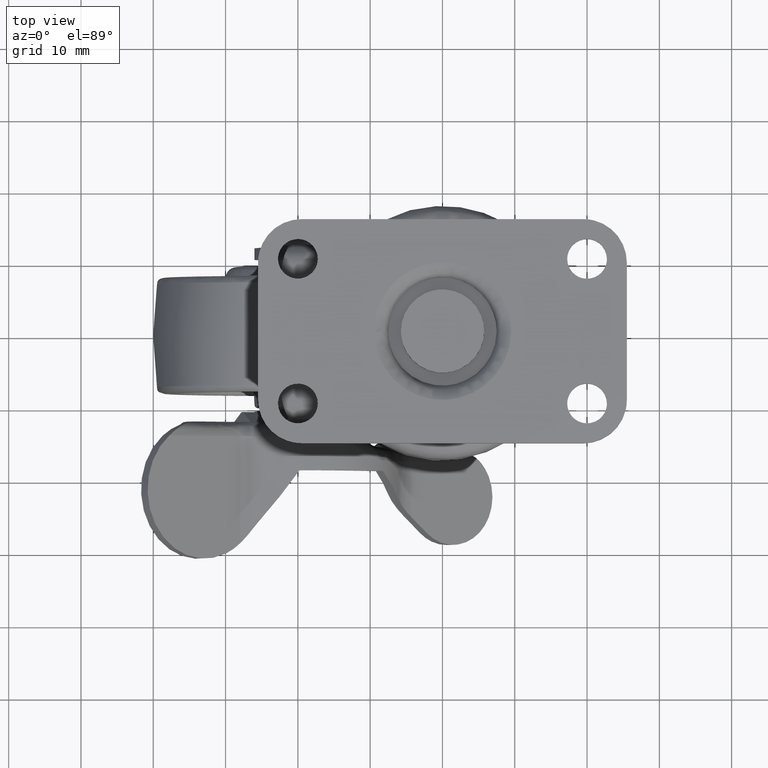
[diagram: clean part render]
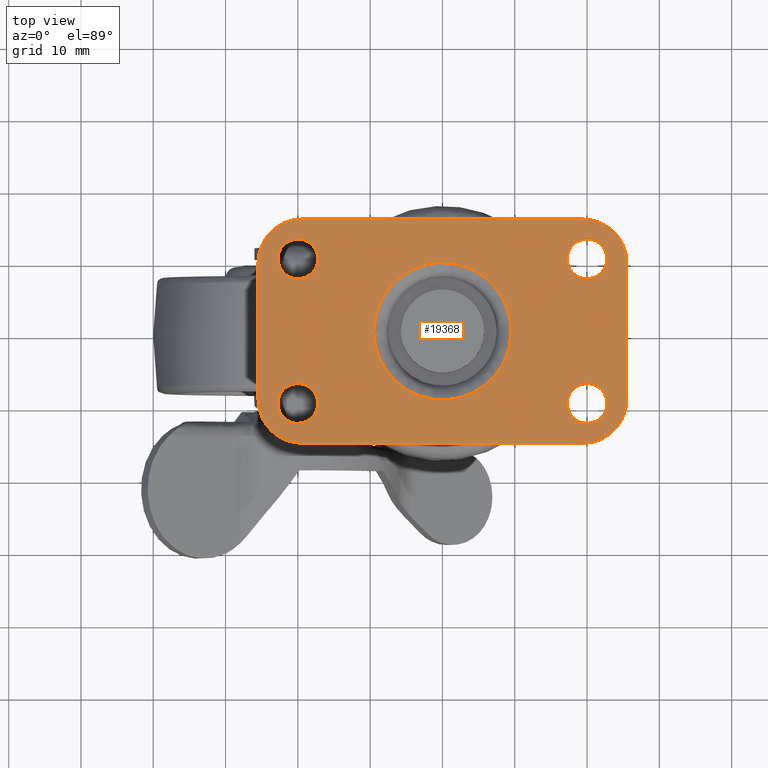
[diagram: same view with one face highlighted and labeled with its STEP entity id]
A machine part, top view. The second image highlights one B-rep face of the part: STEP entity #19368.
In plain terms, the highlighted face is a freeform B-spline surface patch.
Its self-contained STEP definition (entity closure, byte-faithful):
#15477=CARTESIAN_POINT('',(0.215762513266570,12.741522667764810,38.0));
#15478=VERTEX_POINT('',#15477);
#15484=CARTESIAN_POINT('',(-2.750000000000001,9.999999999999890,38.0));
#15485=VERTEX_POINT('',#15484);
#15486=CARTESIAN_POINT('',(0.215762513266569,12.741522667764812,38.0));
#15487=CARTESIAN_POINT('',(0.108047794286156,12.749999999999890,38.000000000000007));
#15488=CARTESIAN_POINT('',(-1.224606E-015,12.749999999999890,38.0));
#15489=CARTESIAN_POINT('',(-2.750000000000002,12.749999999999892,38.0));
#15490=CARTESIAN_POINT('',(-2.750000000000001,9.999999999999890,38.0));
#15498=(BOUNDED_CURVE()B_SPLINE_CURVE(2,(#15486,#15487,#15488,#15489,#15490),.UNSPECIFIED.,.F.,.U.)B_SPLINE_CURVE_WITH_KNOTS((3,2,3),(0.736331300630891,0.750000000000000,1.0),.UNSPECIFIED.)CURVE()GEOMETRIC_REPRESENTATION_ITEM()RATIONAL_B_SPLINE_CURVE((0.969723356167902,0.983986122579154,1.0,0.707106781186548,1.0))REPRESENTATION_ITEM(''));
#15499=EDGE_CURVE('',#15478,#15485,#15498,.T.);
#15501=CARTESIAN_POINT('',(-0.215762513266572,7.258477332234969,38.0));
#15502=VERTEX_POINT('',#15501);
#15503=CARTESIAN_POINT('',(-2.750000000000001,9.999999999999890,38.0));
#15504=CARTESIAN_POINT('',(-2.750000000000000,7.457926147967717,37.999999999999993));
#15505=CARTESIAN_POINT('',(-0.215762513266572,7.258477332234969,38.0));
#15513=(BOUNDED_CURVE()B_SPLINE_CURVE(2,(#15503,#15504,#15505),.UNSPECIFIED.,.F.,.U.)B_SPLINE_CURVE_WITH_KNOTS((3,3),(0.0,0.236331300630891),.UNSPECIFIED.)CURVE()GEOMETRIC_REPRESENTATION_ITEM()RATIONAL_B_SPLINE_CURVE((1.0,0.723120658607394,0.969723356167902))REPRESENTATION_ITEM(''));
#15514=EDGE_CURVE('',#15485,#15502,#15513,.T.);
#15560=CARTESIAN_POINT('',(2.749999999999999,9.999999999999890,38.0));
#15561=VERTEX_POINT('',#15560);
#15562=CARTESIAN_POINT('',(-0.215762513266572,7.258477332234969,38.0));
#15563=CARTESIAN_POINT('',(-0.108047794286159,7.249999999999889,38.000000000000007));
#15564=CARTESIAN_POINT('',(-1.224606E-015,7.249999999999889,38.0));
#15565=CARTESIAN_POINT('',(2.749999999999999,7.249999999999888,38.0));
#15566=CARTESIAN_POINT('',(2.749999999999999,9.999999999999890,38.0));
#15574=(BOUNDED_CURVE()B_SPLINE_CURVE(2,(#15562,#15563,#15564,#15565,#15566),.UNSPECIFIED.,.F.,.U.)B_SPLINE_CURVE_WITH_KNOTS((3,2,3),(0.236331300630891,0.250000000000000,0.500000000000000),.UNSPECIFIED.)CURVE()GEOMETRIC_REPRESENTATION_ITEM()RATIONAL_B_SPLINE_CURVE((0.969723356167902,0.983986122579154,1.0,0.707106781186548,1.0))REPRESENTATION_ITEM(''));
#15575=EDGE_CURVE('',#15502,#15561,#15574,.T.);
#15577=CARTESIAN_POINT('',(2.749999999999999,9.999999999999890,38.0));
#15578=CARTESIAN_POINT('',(2.749999999999999,12.542073852032072,38.0));
#15579=CARTESIAN_POINT('',(0.215762513266569,12.741522667764809,38.0));
#15587=(BOUNDED_CURVE()B_SPLINE_CURVE(2,(#15577,#15578,#15579),.UNSPECIFIED.,.F.,.U.)B_SPLINE_CURVE_WITH_KNOTS((3,3),(0.500000000000000,0.736331300630892),.UNSPECIFIED.)CURVE()GEOMETRIC_REPRESENTATION_ITEM()RATIONAL_B_SPLINE_CURVE((1.0,0.723120658607393,0.969723356167903))REPRESENTATION_ITEM(''));
#15588=EDGE_CURVE('',#15561,#15478,#15587,.T.);
#15659=CARTESIAN_POINT('',(40.215762513266569,12.741522667764810,38.0));
#15660=VERTEX_POINT('',#15659);
#15666=CARTESIAN_POINT('',(37.250000000000000,9.999999999999890,38.0));
#15667=VERTEX_POINT('',#15666);
#15668=CARTESIAN_POINT('',(40.215762513266569,12.741522667764814,38.0));
#15669=CARTESIAN_POINT('',(40.108047794286165,12.749999999999895,38.000000000000007));
#15670=CARTESIAN_POINT('',(40.0,12.749999999999890,38.0));
#15671=CARTESIAN_POINT('',(37.250000000000000,12.749999999999892,38.0));
#15672=CARTESIAN_POINT('',(37.250000000000000,9.999999999999890,38.0));
#15680=(BOUNDED_CURVE()B_SPLINE_CURVE(2,(#15668,#15669,#15670,#15671,#15672),.UNSPECIFIED.,.F.,.U.)B_SPLINE_CURVE_WITH_KNOTS((3,2,3),(0.736331300630891,0.750000000000000,1.0),.UNSPECIFIED.)CURVE()GEOMETRIC_REPRESENTATION_ITEM()RATIONAL_B_SPLINE_CURVE((0.969723356167901,0.983986122579153,1.0,0.707106781186548,1.0))REPRESENTATION_ITEM(''));
#15681=EDGE_CURVE('',#15660,#15667,#15680,.T.);
#15683=CARTESIAN_POINT('',(39.784237486733431,7.258477332234969,38.0));
#15684=VERTEX_POINT('',#15683);
#15685=CARTESIAN_POINT('',(37.250000000000000,9.999999999999890,38.0));
#15686=CARTESIAN_POINT('',(37.250000000000000,7.457926147967717,37.999999999999993));
#15687=CARTESIAN_POINT('',(39.784237486733431,7.258477332234969,38.0));
#15695=(BOUNDED_CURVE()B_SPLINE_CURVE(2,(#15685,#15686,#15687),.UNSPECIFIED.,.F.,.U.)B_SPLINE_CURVE_WITH_KNOTS((3,3),(0.0,0.236331300630891),.UNSPECIFIED.)CURVE()GEOMETRIC_REPRESENTATION_ITEM()RATIONAL_B_SPLINE_CURVE((1.0,0.723120658607394,0.969723356167902))REPRESENTATION_ITEM(''));
#15696=EDGE_CURVE('',#15667,#15684,#15695,.T.);
#15742=CARTESIAN_POINT('',(42.750000000000000,9.999999999999890,38.0));
#15743=VERTEX_POINT('',#15742);
#15744=CARTESIAN_POINT('',(39.784237486733431,7.258477332234969,38.0));
#15745=CARTESIAN_POINT('',(39.891952205713849,7.249999999999888,38.000000000000007));
#15746=CARTESIAN_POINT('',(40.0,7.249999999999889,38.0));
#15747=CARTESIAN_POINT('',(42.750000000000000,7.249999999999888,38.0));
#15748=CARTESIAN_POINT('',(42.750000000000000,9.999999999999890,38.0));
#15756=(BOUNDED_CURVE()B_SPLINE_CURVE(2,(#15744,#15745,#15746,#15747,#15748),.UNSPECIFIED.,.F.,.U.)B_SPLINE_CURVE_WITH_KNOTS((3,2,3),(0.236331300630891,0.250000000000000,0.500000000000000),.UNSPECIFIED.)CURVE()GEOMETRIC_REPRESENTATION_ITEM()RATIONAL_B_SPLINE_CURVE((0.969723356167902,0.983986122579154,1.0,0.707106781186548,1.0))REPRESENTATION_ITEM(''));
#15757=EDGE_CURVE('',#15684,#15743,#15756,.T.);
#15759=CARTESIAN_POINT('',(42.750000000000000,9.999999999999890,38.0));
#15760=CARTESIAN_POINT('',(42.750000000000000,12.542073852032072,38.0));
#15761=CARTESIAN_POINT('',(40.215762513266569,12.741522667764809,38.0));
#15769=(BOUNDED_CURVE()B_SPLINE_CURVE(2,(#15759,#15760,#15761),.UNSPECIFIED.,.F.,.U.)B_SPLINE_CURVE_WITH_KNOTS((3,3),(0.500000000000000,0.736331300630892),.UNSPECIFIED.)CURVE()GEOMETRIC_REPRESENTATION_ITEM()RATIONAL_B_SPLINE_CURVE((1.0,0.723120658607393,0.969723356167903))REPRESENTATION_ITEM(''));
#15770=EDGE_CURVE('',#15743,#15660,#15769,.T.);
#15841=CARTESIAN_POINT('',(0.215762513266572,-7.258477332235079,38.0));
#15842=VERTEX_POINT('',#15841);
#15848=CARTESIAN_POINT('',(-2.749999999999999,-10.0,38.0));
#15849=VERTEX_POINT('',#15848);
#15850=CARTESIAN_POINT('',(0.215762513266572,-7.258477332235079,38.0));
#15851=CARTESIAN_POINT('',(0.108047794286159,-7.249999999999999,38.000000000000007));
#15852=CARTESIAN_POINT('',(1.224606E-015,-7.250000000000000,38.0));
#15853=CARTESIAN_POINT('',(-2.749999999999999,-7.250000000000000,38.0));
#15854=CARTESIAN_POINT('',(-2.749999999999999,-10.0,38.0));
#15862=(BOUNDED_CURVE()B_SPLINE_CURVE(2,(#15850,#15851,#15852,#15853,#15854),.UNSPECIFIED.,.F.,.U.)B_SPLINE_CURVE_WITH_KNOTS((3,2,3),(0.736331300630891,0.750000000000000,1.0),.UNSPECIFIED.)CURVE()GEOMETRIC_REPRESENTATION_ITEM()RATIONAL_B_SPLINE_CURVE((0.969723356167902,0.983986122579154,1.0,0.707106781186548,1.0))REPRESENTATION_ITEM(''));
#15863=EDGE_CURVE('',#15842,#15849,#15862,.T.);
#15865=CARTESIAN_POINT('',(-0.215762513266570,-12.741522667764920,38.0));
#15866=VERTEX_POINT('',#15865);
#15867=CARTESIAN_POINT('',(-2.749999999999999,-10.0,38.0));
#15868=CARTESIAN_POINT('',(-2.749999999999999,-12.542073852032173,37.999999999999993));
#15869=CARTESIAN_POINT('',(-0.215762513266570,-12.741522667764919,38.0));
#15877=(BOUNDED_CURVE()B_SPLINE_CURVE(2,(#15867,#15868,#15869),.UNSPECIFIED.,.F.,.U.)B_SPLINE_CURVE_WITH_KNOTS((3,3),(0.0,0.236331300630891),.UNSPECIFIED.)CURVE()GEOMETRIC_REPRESENTATION_ITEM()RATIONAL_B_SPLINE_CURVE((1.0,0.723120658607394,0.969723356167902))REPRESENTATION_ITEM(''));
#15878=EDGE_CURVE('',#15849,#15866,#15877,.T.);
#15924=CARTESIAN_POINT('',(2.750000000000001,-10.0,38.0));
#15925=VERTEX_POINT('',#15924);
#15926=CARTESIAN_POINT('',(-0.215762513266570,-12.741522667764919,38.0));
#15927=CARTESIAN_POINT('',(-0.108047794286157,-12.750000000000004,38.000000000000007));
#15928=CARTESIAN_POINT('',(1.224606E-015,-12.750000000000000,38.0));
#15929=CARTESIAN_POINT('',(2.750000000000002,-12.750000000000002,38.0));
#15930=CARTESIAN_POINT('',(2.750000000000001,-10.0,38.0));
#15938=(BOUNDED_CURVE()B_SPLINE_CURVE(2,(#15926,#15927,#15928,#15929,#15930),.UNSPECIFIED.,.F.,.U.)B_SPLINE_CURVE_WITH_KNOTS((3,2,3),(0.236331300630891,0.250000000000000,0.500000000000000),.UNSPECIFIED.)CURVE()GEOMETRIC_REPRESENTATION_ITEM()RATIONAL_B_SPLINE_CURVE((0.969723356167902,0.983986122579154,1.0,0.707106781186548,1.0))REPRESENTATION_ITEM(''));
#15939=EDGE_CURVE('',#15866,#15925,#15938,.T.);
#15941=CARTESIAN_POINT('',(2.750000000000001,-10.0,38.0));
#15942=CARTESIAN_POINT('',(2.750000000000002,-7.457926147967818,38.0));
#15943=CARTESIAN_POINT('',(0.215762513266572,-7.258477332235079,38.0));
#15951=(BOUNDED_CURVE()B_SPLINE_CURVE(2,(#15941,#15942,#15943),.UNSPECIFIED.,.F.,.U.)B_SPLINE_CURVE_WITH_KNOTS((3,3),(0.500000000000000,0.736331300630892),.UNSPECIFIED.)CURVE()GEOMETRIC_REPRESENTATION_ITEM()RATIONAL_B_SPLINE_CURVE((1.0,0.723120658607393,0.969723356167903))REPRESENTATION_ITEM(''));
#15952=EDGE_CURVE('',#15925,#15842,#15951,.T.);
#16023=CARTESIAN_POINT('',(40.215762513266569,-7.258477332235080,38.0));
#16024=VERTEX_POINT('',#16023);
#16030=CARTESIAN_POINT('',(37.250000000000000,-10.0,38.0));
#16031=VERTEX_POINT('',#16030);
#16032=CARTESIAN_POINT('',(40.215762513266569,-7.258477332235080,38.0));
#16033=CARTESIAN_POINT('',(40.108047794286165,-7.250000000000000,38.000000000000007));
#16034=CARTESIAN_POINT('',(40.0,-7.250000000000000,38.0));
#16035=CARTESIAN_POINT('',(37.250000000000000,-7.250000000000000,38.0));
#16036=CARTESIAN_POINT('',(37.250000000000000,-10.0,38.0));
#16044=(BOUNDED_CURVE()B_SPLINE_CURVE(2,(#16032,#16033,#16034,#16035,#16036),.UNSPECIFIED.,.F.,.U.)B_SPLINE_CURVE_WITH_KNOTS((3,2,3),(0.736331300630891,0.750000000000000,1.0),.UNSPECIFIED.)CURVE()GEOMETRIC_REPRESENTATION_ITEM()RATIONAL_B_SPLINE_CURVE((0.969723356167901,0.983986122579153,1.0,0.707106781186548,1.0))REPRESENTATION_ITEM(''));
#16045=EDGE_CURVE('',#16024,#16031,#16044,.T.);
#16047=CARTESIAN_POINT('',(39.784237486733431,-12.741522667764920,38.0));
#16048=VERTEX_POINT('',#16047);
#16049=CARTESIAN_POINT('',(37.250000000000000,-10.0,38.0));
#16050=CARTESIAN_POINT('',(37.250000000000000,-12.542073852032173,37.999999999999993));
#16051=CARTESIAN_POINT('',(39.784237486733431,-12.741522667764919,38.0));
#16059=(BOUNDED_CURVE()B_SPLINE_CURVE(2,(#16049,#16050,#16051),.UNSPECIFIED.,.F.,.U.)B_SPLINE_CURVE_WITH_KNOTS((3,3),(0.0,0.236331300630891),.UNSPECIFIED.)CURVE()GEOMETRIC_REPRESENTATION_ITEM()RATIONAL_B_SPLINE_CURVE((1.0,0.723120658607394,0.969723356167902))REPRESENTATION_ITEM(''));
#16060=EDGE_CURVE('',#16031,#16048,#16059,.T.);
#16106=CARTESIAN_POINT('',(42.750000000000000,-10.0,38.0));
#16107=VERTEX_POINT('',#16106);
#16108=CARTESIAN_POINT('',(39.784237486733431,-12.741522667764919,38.0));
#16109=CARTESIAN_POINT('',(39.891952205713849,-12.750000000000004,38.000000000000007));
#16110=CARTESIAN_POINT('',(40.0,-12.750000000000000,38.0));
#16111=CARTESIAN_POINT('',(42.750000000000000,-12.750000000000002,38.0));
#16112=CARTESIAN_POINT('',(42.750000000000000,-10.0,38.0));
#16120=(BOUNDED_CURVE()B_SPLINE_CURVE(2,(#16108,#16109,#16110,#16111,#16112),.UNSPECIFIED.,.F.,.U.)B_SPLINE_CURVE_WITH_KNOTS((3,2,3),(0.236331300630891,0.250000000000000,0.500000000000000),.UNSPECIFIED.)CURVE()GEOMETRIC_REPRESENTATION_ITEM()RATIONAL_B_SPLINE_CURVE((0.969723356167902,0.983986122579154,1.0,0.707106781186548,1.0))REPRESENTATION_ITEM(''));
#16121=EDGE_CURVE('',#16048,#16107,#16120,.T.);
#16123=CARTESIAN_POINT('',(42.750000000000000,-10.0,38.0));
#16124=CARTESIAN_POINT('',(42.750000000000000,-7.457926147967818,38.0));
#16125=CARTESIAN_POINT('',(40.215762513266569,-7.258477332235080,38.0));
#16133=(BOUNDED_CURVE()B_SPLINE_CURVE(2,(#16123,#16124,#16125),.UNSPECIFIED.,.F.,.U.)B_SPLINE_CURVE_WITH_KNOTS((3,3),(0.500000000000000,0.736331300630892),.UNSPECIFIED.)CURVE()GEOMETRIC_REPRESENTATION_ITEM()RATIONAL_B_SPLINE_CURVE((1.0,0.723120658607393,0.969723356167903))REPRESENTATION_ITEM(''));
#16134=EDGE_CURVE('',#16107,#16024,#16133,.T.);
#17038=CARTESIAN_POINT('',(10.500750080462669,-0.119377378986697,38.0));
#17039=VERTEX_POINT('',#17038);
#17053=CARTESIAN_POINT('',(29.500000000000000,0.0,38.0));
#17054=VERTEX_POINT('',#17053);
#17055=CARTESIAN_POINT('',(29.500000000000000,0.0,38.0));
#17056=CARTESIAN_POINT('',(29.499999999999996,-9.500000000000000,38.0));
#17057=CARTESIAN_POINT('',(20.0,-9.500000000000000,38.0));
#17058=CARTESIAN_POINT('',(10.618636666077739,-9.499999999999998,37.999999999999993));
#17059=CARTESIAN_POINT('',(10.500750080462666,-0.119377378986697,38.000000000000007));
#17067=(BOUNDED_CURVE()B_SPLINE_CURVE(2,(#17055,#17056,#17057,#17058,#17059),.UNSPECIFIED.,.F.,.U.)B_SPLINE_CURVE_WITH_KNOTS((3,2,3),(0.500000000000000,0.750000000000000,0.997784295918031),.UNSPECIFIED.)CURVE()GEOMETRIC_REPRESENTATION_ITEM()RATIONAL_B_SPLINE_CURVE((1.0,0.707106781186548,1.0,0.709702639988571,0.994854295635503))REPRESENTATION_ITEM(''));
#17068=EDGE_CURVE('',#17054,#17039,#17067,.T.);
#17070=CARTESIAN_POINT('',(19.337534109911189,9.476873900506970,38.0));
#17071=VERTEX_POINT('',#17070);
#17072=CARTESIAN_POINT('',(19.337534109911193,9.476873900506970,38.0));
#17073=CARTESIAN_POINT('',(19.668363399000064,9.500000000000000,38.000000000000007));
#17074=CARTESIAN_POINT('',(20.0,9.500000000000000,38.0));
#17075=CARTESIAN_POINT('',(29.499999999999996,9.500000000000000,38.0));
#17076=CARTESIAN_POINT('',(29.500000000000000,0.0,38.0));
#17084=(BOUNDED_CURVE()B_SPLINE_CURVE(2,(#17072,#17073,#17074,#17075,#17076),.UNSPECIFIED.,.F.,.U.)B_SPLINE_CURVE_WITH_KNOTS((3,2,3),(0.237833686528257,0.250000000000000,0.500000000000000),.UNSPECIFIED.)CURVE()GEOMETRIC_REPRESENTATION_ITEM()RATIONAL_B_SPLINE_CURVE((0.972879876372520,0.985746277144671,1.0,0.707106781186548,1.0))REPRESENTATION_ITEM(''));
#17085=EDGE_CURVE('',#17071,#17054,#17084,.T.);
#17122=CARTESIAN_POINT('',(10.500000000000000,0.0,38.0));
#17123=VERTEX_POINT('',#17122);
#17124=CARTESIAN_POINT('',(10.500000000000000,0.0,38.0));
#17125=CARTESIAN_POINT('',(10.500000000000000,8.859100048677751,38.0));
#17126=CARTESIAN_POINT('',(19.337534109911193,9.476873900506970,38.000000000000007));
#17134=(BOUNDED_CURVE()B_SPLINE_CURVE(2,(#17124,#17125,#17126),.UNSPECIFIED.,.F.,.U.)B_SPLINE_CURVE_WITH_KNOTS((3,3),(0.0,0.237833686528257),.UNSPECIFIED.)CURVE()GEOMETRIC_REPRESENTATION_ITEM()RATIONAL_B_SPLINE_CURVE((1.0,0.721360504041877,0.972879876372520))REPRESENTATION_ITEM(''));
#17135=EDGE_CURVE('',#17123,#17071,#17134,.T.);
#17137=CARTESIAN_POINT('',(10.500750080462666,-0.119377378986697,38.000000000000007));
#17138=CARTESIAN_POINT('',(10.500000000000000,-0.059691046022809,38.0));
#17139=CARTESIAN_POINT('',(10.500000000000000,0.0,38.0));
#17147=(BOUNDED_CURVE()B_SPLINE_CURVE(2,(#17137,#17138,#17139),.UNSPECIFIED.,.F.,.U.)B_SPLINE_CURVE_WITH_KNOTS((3,3),(0.997784295918031,1.0),.UNSPECIFIED.)CURVE()GEOMETRIC_REPRESENTATION_ITEM()RATIONAL_B_SPLINE_CURVE((0.994854295635503,0.997404141197976,1.0))REPRESENTATION_ITEM(''));
#17148=EDGE_CURVE('',#17039,#17123,#17147,.T.);
#18982=CARTESIAN_POINT('',(0.500003141592645,-15.499999999999201,38.0));
#18983=VERTEX_POINT('',#18982);
#18989=CARTESIAN_POINT('',(-5.500000000000000,-9.500000000000000,38.0));
#18990=VERTEX_POINT('',#18989);
#18991=CARTESIAN_POINT('',(-5.500000000000000,-9.500000000000000,38.0));
#18992=CARTESIAN_POINT('',(-5.500000000000001,-11.985282294389798,38.0));
#18993=CARTESIAN_POINT('',(-3.742639576398409,-13.742641797839870,38.0));
#18994=CARTESIAN_POINT('',(-1.985279152796817,-15.500001301289936,38.0));
#18995=CARTESIAN_POINT('',(0.500003141592644,-15.499999999999179,38.0));
#19003=(BOUNDED_CURVE()B_SPLINE_CURVE(2,(#18991,#18992,#18993,#18994,#18995),.UNSPECIFIED.,.F.,.U.)B_SPLINE_CURVE_WITH_KNOTS((3,2,3),(0.0,0.500000000000000,1.0),.UNSPECIFIED.)CURVE()GEOMETRIC_REPRESENTATION_ITEM()RATIONAL_B_SPLINE_CURVE((1.0,0.923879482418135,1.0,0.923879482418135,1.0))REPRESENTATION_ITEM(''));
#19004=EDGE_CURVE('',#18990,#18983,#19003,.T.);
#19027=CARTESIAN_POINT('',(-5.499999999998540,9.500004188790211,38.0));
#19028=VERTEX_POINT('',#19027);
#19029=CARTESIAN_POINT('',(-5.499999999998540,9.500004188790211,38.0));
#19030=CARTESIAN_POINT('',(-5.500000000000000,-9.500000000000000,38.0));
#19031=QUASI_UNIFORM_CURVE('',1,(#19029,#19030),.UNSPECIFIED.,.F.,.U.);
#19032=EDGE_CURVE('',#19028,#18990,#19031,.T.);
#19072=CARTESIAN_POINT('',(0.500000000000000,15.500000000000000,38.0));
#19073=VERTEX_POINT('',#19072);
#19074=CARTESIAN_POINT('',(0.500000000000000,15.500000000000000,38.0));
#19075=CARTESIAN_POINT('',(-5.499995811211249,15.500000000000004,38.0));
#19076=CARTESIAN_POINT('',(-5.499999999998537,9.500004188790213,38.0));
#19084=(BOUNDED_CURVE()B_SPLINE_CURVE(2,(#19074,#19075,#19076),.UNSPECIFIED.,.F.,.U.)CURVE()GEOMETRIC_REPRESENTATION_ITEM()QUASI_UNIFORM_CURVE()RATIONAL_B_SPLINE_CURVE((1.0,0.707107028013335,1.0))REPRESENTATION_ITEM(''));
#19085=EDGE_CURVE('',#19073,#19028,#19084,.T.);
#19108=CARTESIAN_POINT('',(39.500001884955587,15.499999999999700,38.0));
#19109=VERTEX_POINT('',#19108);
#19110=CARTESIAN_POINT('',(39.500001884955587,15.499999999999700,38.0));
#19111=CARTESIAN_POINT('',(0.500000000000000,15.500000000000000,38.0));
#19112=QUASI_UNIFORM_CURVE('',1,(#19110,#19111),.UNSPECIFIED.,.F.,.U.);
#19113=EDGE_CURVE('',#19109,#19073,#19112,.T.);
#19153=CARTESIAN_POINT('',(45.500000000000000,9.500000000000000,38.0));
#19154=VERTEX_POINT('',#19153);
#19155=CARTESIAN_POINT('',(45.500000000000000,9.500000000000000,38.0));
#19156=CARTESIAN_POINT('',(45.500000000000007,15.499998115044702,38.0));
#19157=CARTESIAN_POINT('',(39.500001884955587,15.499999999999710,38.0));
#19165=(BOUNDED_CURVE()B_SPLINE_CURVE(2,(#19155,#19156,#19157),.UNSPECIFIED.,.F.,.U.)CURVE()GEOMETRIC_REPRESENTATION_ITEM()QUASI_UNIFORM_CURVE()RATIONAL_B_SPLINE_CURVE((1.0,0.707106892258612,1.0))REPRESENTATION_ITEM(''));
#19166=EDGE_CURVE('',#19154,#19109,#19165,.T.);
#19189=CARTESIAN_POINT('',(45.500000000000000,-9.500000000000000,38.0));
#19190=VERTEX_POINT('',#19189);
#19191=CARTESIAN_POINT('',(45.500000000000000,-9.500000000000000,38.0));
#19192=CARTESIAN_POINT('',(45.500000000000000,9.500000000000000,38.0));
#19193=QUASI_UNIFORM_CURVE('',1,(#19191,#19192),.UNSPECIFIED.,.F.,.U.);
#19194=EDGE_CURVE('',#19190,#19154,#19193,.T.);
#19234=CARTESIAN_POINT('',(39.500002094395100,-15.499999999999650,38.0));
#19235=VERTEX_POINT('',#19234);
#19236=CARTESIAN_POINT('',(39.500002094395100,-15.499999999999631,38.0));
#19237=CARTESIAN_POINT('',(45.500000000000000,-15.499997905605262,38.0));
#19238=CARTESIAN_POINT('',(45.500000000000000,-9.500000000000000,38.0));
#19246=(BOUNDED_CURVE()B_SPLINE_CURVE(2,(#19236,#19237,#19238),.UNSPECIFIED.,.F.,.U.)CURVE()GEOMETRIC_REPRESENTATION_ITEM()QUASI_UNIFORM_CURVE()RATIONAL_B_SPLINE_CURVE((1.0,0.707106904599952,1.0))REPRESENTATION_ITEM(''));
#19247=EDGE_CURVE('',#19235,#19190,#19246,.T.);
#19268=CARTESIAN_POINT('',(0.500003141592645,-15.499999999999201,38.0));
#19269=CARTESIAN_POINT('',(39.500002094395100,-15.499999999999650,38.0));
#19270=QUASI_UNIFORM_CURVE('',1,(#19268,#19269),.UNSPECIFIED.,.F.,.U.);
#19271=EDGE_CURVE('',#18983,#19235,#19270,.T.);
#19323=CARTESIAN_POINT('',(-8.047449901152103,17.048449939915969,38.0));
#19324=CARTESIAN_POINT('',(48.047451269078699,17.048449939915969,38.0));
#19325=CARTESIAN_POINT('',(-8.047449901152103,-17.048450771400422,38.0));
#19326=CARTESIAN_POINT('',(48.047451269078699,-17.048450771400422,38.0));
#19327=B_SPLINE_SURFACE_WITH_KNOTS('',1,1,((#19323,#19325),(#19324,#19326)),.UNSPECIFIED.,.F.,.F.,.U.,(2,2),(2,2),(0.0,56.094901170230798),(0.0,34.096900711316380),.UNSPECIFIED.);
#19328=ORIENTED_EDGE('',*,*,#19271,.T.);
#19329=ORIENTED_EDGE('',*,*,#19247,.T.);
#19330=ORIENTED_EDGE('',*,*,#19194,.T.);
#19331=ORIENTED_EDGE('',*,*,#19166,.T.);
#19332=ORIENTED_EDGE('',*,*,#19113,.T.);
#19333=ORIENTED_EDGE('',*,*,#19085,.T.);
#19334=ORIENTED_EDGE('',*,*,#19032,.T.);
#19335=ORIENTED_EDGE('',*,*,#19004,.T.);
#19336=EDGE_LOOP('',(#19328,#19329,#19330,#19331,#19332,#19333,#19334,#19335));
#19337=FACE_OUTER_BOUND('',#19336,.T.);
#19338=ORIENTED_EDGE('',*,*,#17068,.T.);
#19339=ORIENTED_EDGE('',*,*,#17148,.T.);
#19340=ORIENTED_EDGE('',*,*,#17135,.T.);
#19341=ORIENTED_EDGE('',*,*,#17085,.T.);
#19342=EDGE_LOOP('',(#19338,#19339,#19340,#19341));
#19343=FACE_BOUND('',#19342,.T.);
#19344=ORIENTED_EDGE('',*,*,#16134,.F.);
#19345=ORIENTED_EDGE('',*,*,#16121,.F.);
#19346=ORIENTED_EDGE('',*,*,#16060,.F.);
#19347=ORIENTED_EDGE('',*,*,#16045,.F.);
#19348=EDGE_LOOP('',(#19344,#19345,#19346,#19347));
#19349=FACE_BOUND('',#19348,.T.);
#19350=ORIENTED_EDGE('',*,*,#15952,.F.);
#19351=ORIENTED_EDGE('',*,*,#15939,.F.);
#19352=ORIENTED_EDGE('',*,*,#15878,.F.);
#19353=ORIENTED_EDGE('',*,*,#15863,.F.);
#19354=EDGE_LOOP('',(#19350,#19351,#19352,#19353));
#19355=FACE_BOUND('',#19354,.T.);
#19356=ORIENTED_EDGE('',*,*,#15770,.F.);
#19357=ORIENTED_EDGE('',*,*,#15757,.F.);
#19358=ORIENTED_EDGE('',*,*,#15696,.F.);
#19359=ORIENTED_EDGE('',*,*,#15681,.F.);
#19360=EDGE_LOOP('',(#19356,#19357,#19358,#19359));
#19361=FACE_BOUND('',#19360,.T.);
#19362=ORIENTED_EDGE('',*,*,#15588,.F.);
#19363=ORIENTED_EDGE('',*,*,#15575,.F.);
#19364=ORIENTED_EDGE('',*,*,#15514,.F.);
#19365=ORIENTED_EDGE('',*,*,#15499,.F.);
#19366=EDGE_LOOP('',(#19362,#19363,#19364,#19365));
#19367=FACE_BOUND('',#19366,.T.);
#19368=ADVANCED_FACE('',(#19337,#19343,#19349,#19355,#19361,#19367),#19327,.F.);